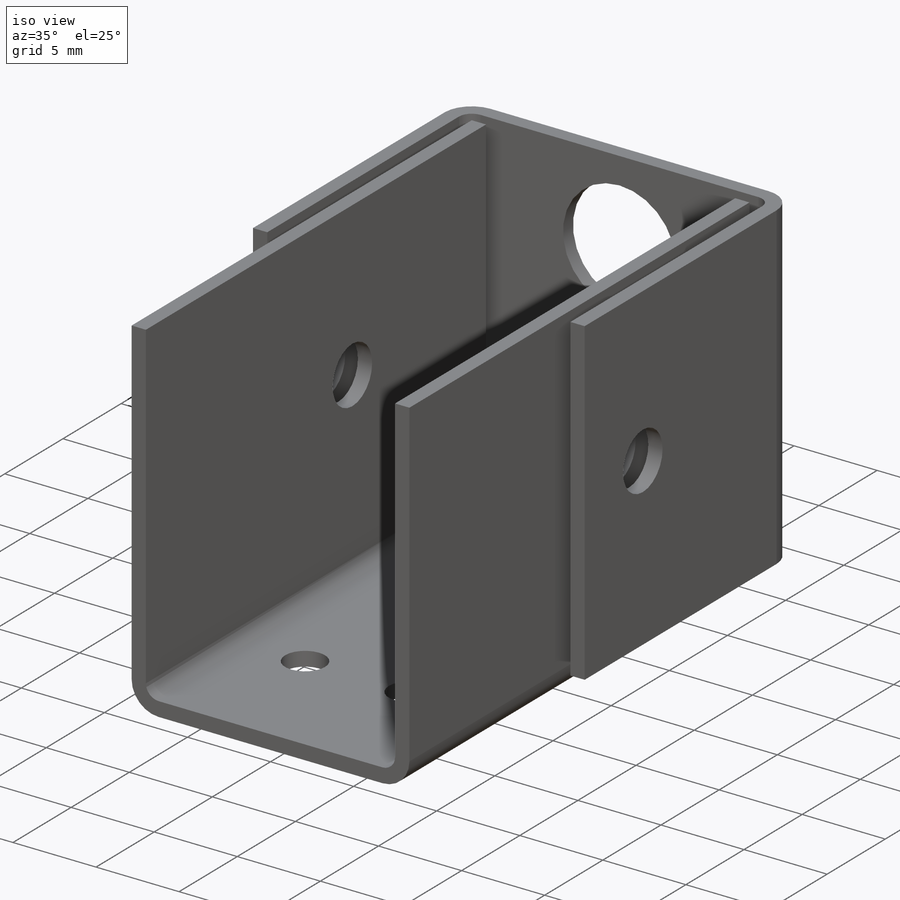
[diagram: iso view]
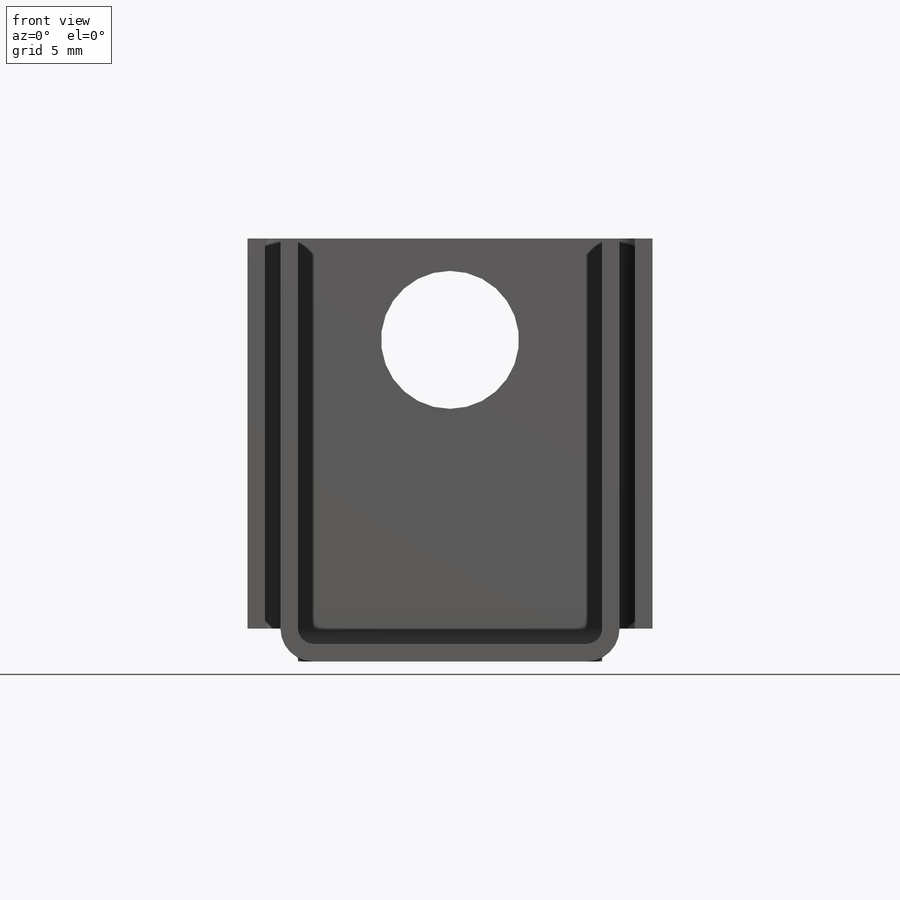
[diagram: front view]
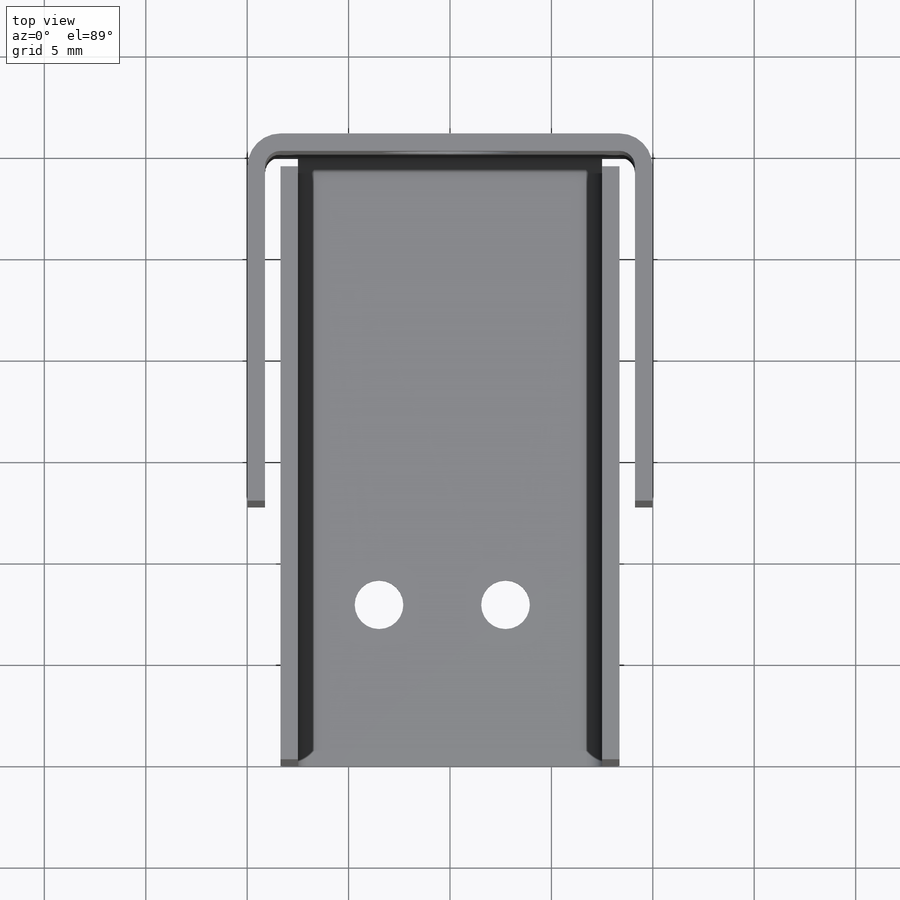
[diagram: top view]
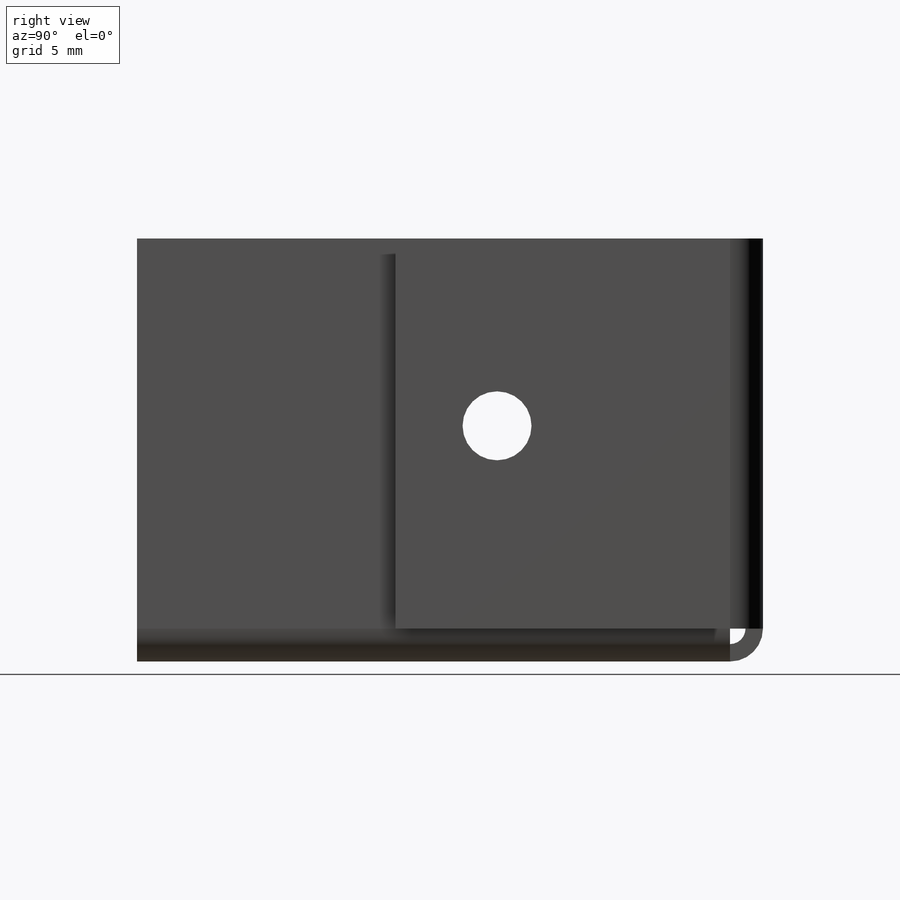
[diagram: right view]
SOLIDWORKS PART (.sldprt)
format: sldprt  version: not decoded by parser v0  size: 495,616 bytes
history: native  units: mm
features: sketch x31, sheet_metal_op x14, hole x2, material x1, cut_extrude x1 + 9 further entries (+12 scaffold rows collapsed; 9 parser-record rows omitted)
feature tree (79):
  scaffold x12  (default folders/planes/origin — collapsed)
  material  "Material <not specified>"
  sketch  "Sketch1"  dims[c1.D1=15.0mm c1.D2=30.0mm c2.D1=0.762mm c2.D2=0.389 c2.D3=1.1938mm c2.D6=500.0mm]
  sheet_metal_op  "Base-Flange1"
  sketch  "Sketch8"  dims[c1.D1=0.762mm c1.D4=90.0deg c1.D5=1.0 c1.D8=0.43mm c1.D9=0.43mm c2.D1=0.762mm c2.D2=500.0mm c2.D3=0.0mm c2.D6=10.0mm c2.D7=20.0mm c2.Edge-Flange2=0.0]
  sketch  "Sketch11"
  sheet_metal_op  "EdgeBend2"  Edge-Flange3=0
  sketch  "Sketch14"
  sheet_metal_op  "EdgeBend3"  Edge-Flange4=0
  sketch  "Sketch17"
  sheet_metal_op  "EdgeBend4"  Edge-Flange5=0
  sketch  "Sketch20"
  sheet_metal_op  "EdgeBend5"
  sketch  "Sketch21"  dims[D1=15.0mm]
  cut_extrude  "Cut-Extrude1"  Depth=10mm
  hole  "M3 Clearance Hole2"  Diameter=3.4mm Depth=19.964mm
  sketch  "Sketch27"  dims[D1=5.0mm D2=10.0mm]
  sketch  "Sketch28"  dims[hole-wizard template sketch: 60 standard entries collapsed; hole parameters kept: c18.Thru Hole Depth=19.964mm]
  hole  "M2 Clearance Hole1"  Diameter=2.4mm Depth=12mm
  sketch  "Sketch31"  dims[D1=4.0mm D2=4.0mm]
  sketch  "Sketch29"  dims[hole-wizard template sketch: 49 standard entries collapsed; hole parameters kept: c15.Drill Angle=118.0deg]
  sketch  "Bend-Lines1"
  sketch  "Bounding-Box1"
  sheet_metal_op  "Sheet-Metal(1)"
  "Flat-Pattern(1)"
  sketch  "Bend-Lines2"
  sketch  "Bounding-Box2"
  parser-record x9  (decoder bookkeeping rows leaked as tree rows — omitted from the tree; the rows remain in map.json)
  sheet_metal_op  "Sheet-Metal(2)"
  "Flat-Pattern(1)"
  sketch  "Bend-Lines2"
  sketch  "Bounding-Box2"
  sheet_metal_op  "Sheet-Metal(3)"
  "Flat-Pattern(1)"
  sketch  "Bend-Lines2"
  sketch  "Bounding-Box2"
  sheet_metal_op  "Sheet-Metal(4)"
  "Flat-Pattern(1)"
  sketch  "Bend-Lines2"
  sketch  "Bounding-Box2"
  sheet_metal_op  "Sheet-Metal(5)"
  "Flat-Pattern(1)"
  sketch  "Bend-Lines2"
  sketch  "Bounding-Box2"
  sheet_metal_op  "Sheet-Metal(6)"
  "Flat-Pattern(1)"
  sketch  "Bend-Lines2"
  sketch  "Bounding-Box2"
  sheet_metal_op  "Sheet-Metal(7)"
  "Flat-Pattern(1)"
  sketch  "Bend-Lines2"
  sketch  "Bounding-Box2"
  sheet_metal_op  "Sheet-Metal(9)"
  "Flat-Pattern(1)"
  sketch  "Bend-Lines2"
  sketch  "Bounding-Box2"
  sheet_metal_op  "Sheet-Metal(10)"
  "Flat-Pattern(1)"
  sketch  "Bend-Lines2"
  sketch  "Bounding-Box2"
decode coverage: 13 of 48 modeling features carry decoded parameters; 9 rows unclassified (native names shown)
note: ~ marks probable driven/reference dimensions
note: suppression state not decoded; provenance and decode notes live in map.json
